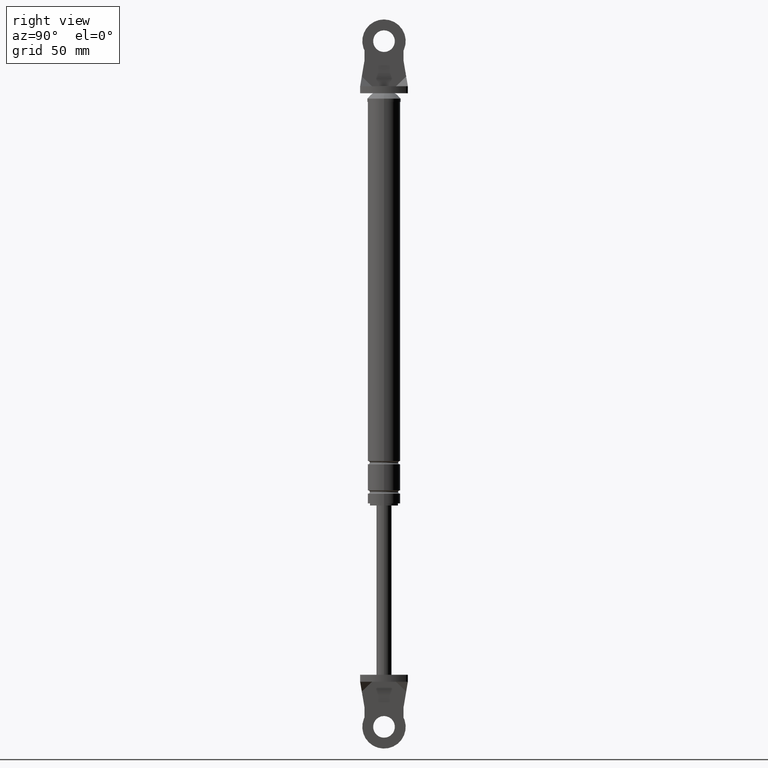
[diagram: clean part render]
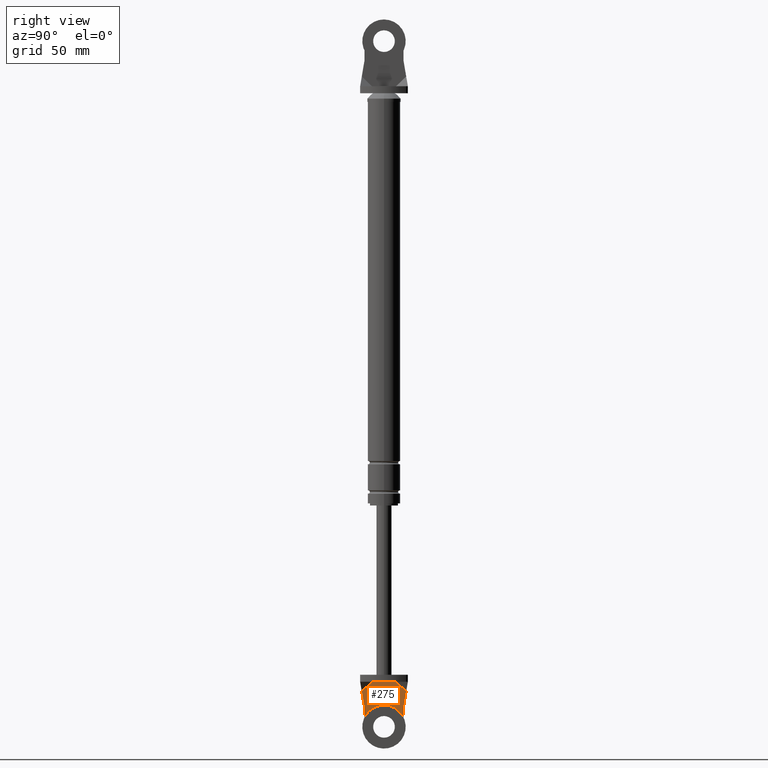
[diagram: same view with one face highlighted and labeled with its STEP entity id]
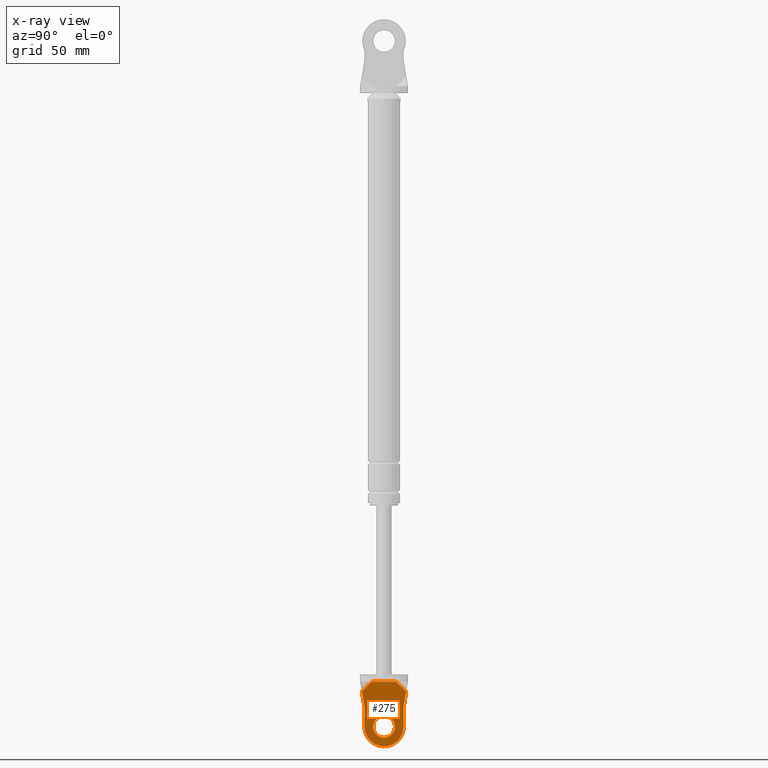
[diagram: x-ray of the same camera — body ghosted, the highlighted face saturated]
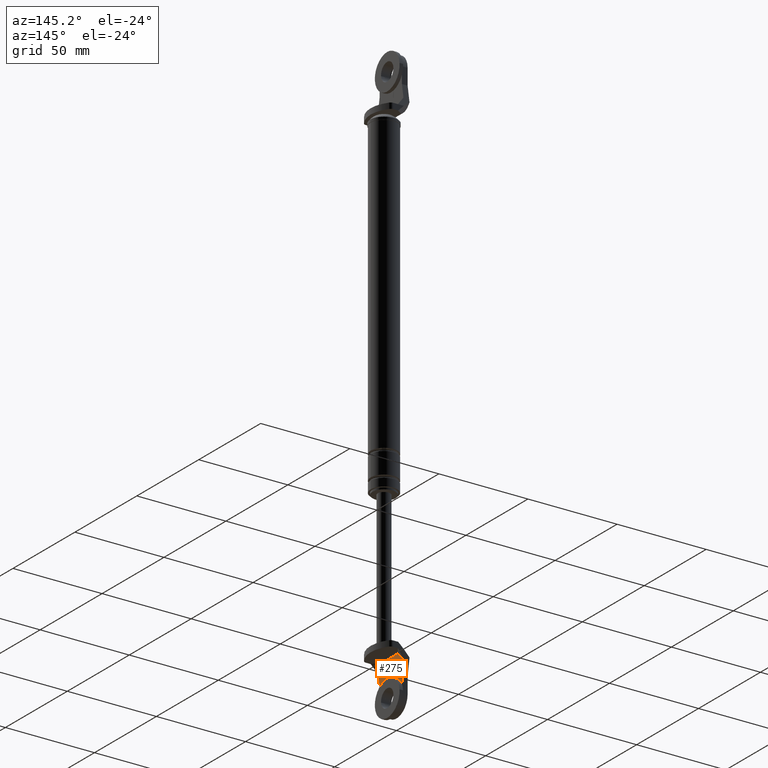
[diagram: same view with one face highlighted and labeled with its STEP entity id]
A machine part, right view. The second image highlights one B-rep face of the part: STEP entity #275.
The next image is the same camera in x-ray: the body ghosted, the highlighted face saturated — about 0% of this face is hidden behind the body in this view.
A second angle (auxiliary view) of the same face is appended — the face is thin or edge-on in the first view.
In plain terms, the highlighted planar face has unit normal (1, 0, 0).
Its self-contained STEP definition (entity closure, byte-faithful):
#275=ADVANCED_FACE('',(#1008,#1009),#1007,.T.);
#1007=PLANE('',#1553);
#1008=FACE_OUTER_BOUND('',#1554,.T.);
#1009=FACE_BOUND('',#1555,.T.);
#1550=CARTESIAN_POINT('',(3.20000000000E+000,1.22847457627E+001,2.92220000000E+002));
#1551=DIRECTION('',(1.00000000000E+000,0.00000000000E+000,-0.00000000000E+000));
#1552=DIRECTION('',(0.00000000000E+000,0.00000000000E+000,1.00000000000E+000));
#1553=AXIS2_PLACEMENT_3D('',#1550,#1551,#1552);
#1554=EDGE_LOOP('',(#1954,#1955,#1956,#1957,#1958,#1959,#1960,#1961));
#1555=EDGE_LOOP('',(#1962,#1963));
#1954=ORIENTED_EDGE('',*,*,#2188,.F.);
#1955=ORIENTED_EDGE('',*,*,#2148,.F.);
#1956=ORIENTED_EDGE('',*,*,#2189,.F.);
#1957=ORIENTED_EDGE('',*,*,#2152,.T.);
#1958=ORIENTED_EDGE('',*,*,#2186,.T.);
#1959=ORIENTED_EDGE('',*,*,#2184,.F.);
#1960=ORIENTED_EDGE('',*,*,#2182,.T.);
#1961=ORIENTED_EDGE('',*,*,#2180,.T.);
#1962=ORIENTED_EDGE('',*,*,#2190,.T.);
#1963=ORIENTED_EDGE('',*,*,#2191,.T.);
#2148=EDGE_CURVE('',#3210,#3217,#3218,.T.);
#2152=EDGE_CURVE('',#3244,#3237,#3245,.T.);
#2180=EDGE_CURVE('',#3429,#3422,#3430,.T.);
#2182=EDGE_CURVE('',#3442,#3429,#3443,.T.);
#2184=EDGE_CURVE('',#3442,#3455,#3456,.T.);
#2186=EDGE_CURVE('',#3237,#3455,#3468,.T.);
#2188=EDGE_CURVE('',#3217,#3422,#3480,.T.);
#2189=EDGE_CURVE('',#3244,#3210,#3486,.T.);
#2190=EDGE_CURVE('',#3492,#3493,#3494,.T.);
#2191=EDGE_CURVE('',#3493,#3492,#3500,.T.);
#3210=VERTEX_POINT('',#4163);
#3217=VERTEX_POINT('',#4166);
#3218=LINE('',#4167,#4168);
#3237=VERTEX_POINT('',#4176);
#3244=VERTEX_POINT('',#4180);
#3245=LINE('',#4181,#4182);
#3422=VERTEX_POINT('',#4297);
#3429=VERTEX_POINT('',#4300);
#3430=LINE('',#4301,#4302);
#3442=VERTEX_POINT('',#4307);
#3443=LINE('',#4308,#4309);
#3455=VERTEX_POINT('',#4314);
#3456=CIRCLE('',#4318,9.00000000000E+000);
#3468=LINE('',#4322,#4323);
#3480=LINE('',#4328,#4329);
#3486=LINE('',#4331,#4332);
#3492=VERTEX_POINT('',#4334);
#3493=VERTEX_POINT('',#4335);
#3494=CIRCLE('',#4339,5.00000000000E+000);
#3500=CIRCLE('',#4343,5.00000000000E+000);
#4163=CARTESIAN_POINT('',(3.20000000000E+000,5.50000000000E+000,2.95200000000E+002));
#4166=CARTESIAN_POINT('',(3.20000000000E+000,-5.50000000000E+000,2.95200000000E+002));
#4167=CARTESIAN_POINT('',(3.20000000000E+000,5.50000000000E+000,2.95200000000E+002));
#4168=VECTOR('',#4169,1.10000000000E+001);
#4169=DIRECTION('',(0.00000000000E+000,-1.00000000000E+000,0.00000000000E+000));
#4176=CARTESIAN_POINT('',(3.20000000000E+000,9.00000000000E+000,3.07000000000E+002));
#4180=CARTESIAN_POINT('',(3.20000000000E+000,1.02372881356E+001,2.99700000000E+002));
#4181=CARTESIAN_POINT('',(3.20000000000E+000,1.02372881356E+001,2.99700000000E+002));
#4182=VECTOR('',#4183,7.40411250120E+000);
#4183=DIRECTION('',(0.00000000000E+000,-1.67108230108E-001,9.85938557634E-001));
#4297=CARTESIAN_POINT('',(3.20000000000E+000,-1.02372881356E+001,2.99700000000E+002));
#4300=CARTESIAN_POINT('',(3.20000000000E+000,-9.00000000000E+000,3.07000000000E+002));
#4301=CARTESIAN_POINT('',(3.20000000000E+000,-9.00000000000E+000,3.07000000000E+002));
#4302=VECTOR('',#4303,7.40411250120E+000);
#4303=DIRECTION('',(0.00000000000E+000,-1.67108230108E-001,-9.85938557634E-001));
#4307=CARTESIAN_POINT('',(3.20000000000E+000,-9.00000000000E+000,3.16000000000E+002));
#4308=CARTESIAN_POINT('',(3.20000000000E+000,-9.00000000000E+000,3.16000000000E+002));
#4309=VECTOR('',#4310,9.00000000000E+000);
#4310=DIRECTION('',(0.00000000000E+000,0.00000000000E+000,-1.00000000000E+000));
#4314=CARTESIAN_POINT('',(3.20000000000E+000,9.00000000000E+000,3.16000000000E+002));
#4315=CARTESIAN_POINT('',(3.20000000000E+000,3.19744231092E-014,3.16000000000E+002));
#4316=DIRECTION('',(-1.00000000000E+000,-0.00000000000E+000,0.00000000000E+000));
#4317=DIRECTION('',(-0.00000000000E+000,-0.00000000000E+000,-1.00000000000E+000));
#4318=AXIS2_PLACEMENT_3D('',#4315,#4316,#4317);
#4322=CARTESIAN_POINT('',(3.20000000000E+000,9.00000000000E+000,3.07000000000E+002));
#4323=VECTOR('',#4324,9.00000000000E+000);
#4324=DIRECTION('',(0.00000000000E+000,0.00000000000E+000,1.00000000000E+000));
#4328=CARTESIAN_POINT('',(3.20000000000E+000,-5.50000000000E+000,2.95200000000E+002));
#4329=VECTOR('',#4330,6.53390380092E+000);
#4330=DIRECTION('',(0.00000000000E+000,-7.25031815578E-001,6.88715374011E-001));
#4331=CARTESIAN_POINT('',(3.20000000000E+000,1.02372881356E+001,2.99700000000E+002));
#4332=VECTOR('',#4333,6.53390380092E+000);
#4333=DIRECTION('',(0.00000000000E+000,-7.25031815578E-001,-6.88715374011E-001));
#4334=CARTESIAN_POINT('',(3.20000000000E+000,3.19744231092E-014,3.21000000000E+002));
#4335=CARTESIAN_POINT('',(3.20000000000E+000,3.13823041627E-014,3.11000000000E+002));
#4336=CARTESIAN_POINT('',(3.20000000000E+000,3.19744231092E-014,3.16000000000E+002));
#4337=DIRECTION('',(-1.00000000000E+000,0.00000000000E+000,0.00000000000E+000));
#4338=DIRECTION('',(0.00000000000E+000,1.22460635382E-016,1.00000000000E+000));
#4339=AXIS2_PLACEMENT_3D('',#4336,#4337,#4338);
#4340=CARTESIAN_POINT('',(3.20000000000E+000,3.19744231092E-014,3.16000000000E+002));
#4341=DIRECTION('',(-1.00000000000E+000,0.00000000000E+000,0.00000000000E+000));
#4342=DIRECTION('',(0.00000000000E+000,1.22460635382E-016,1.00000000000E+000));
#4343=AXIS2_PLACEMENT_3D('',#4340,#4341,#4342);